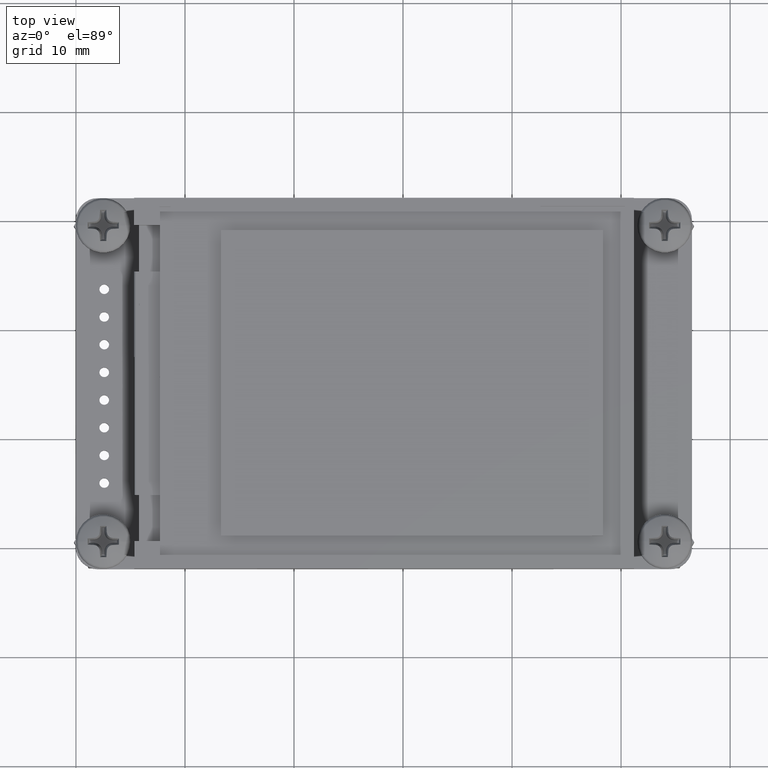
[diagram: clean part render]
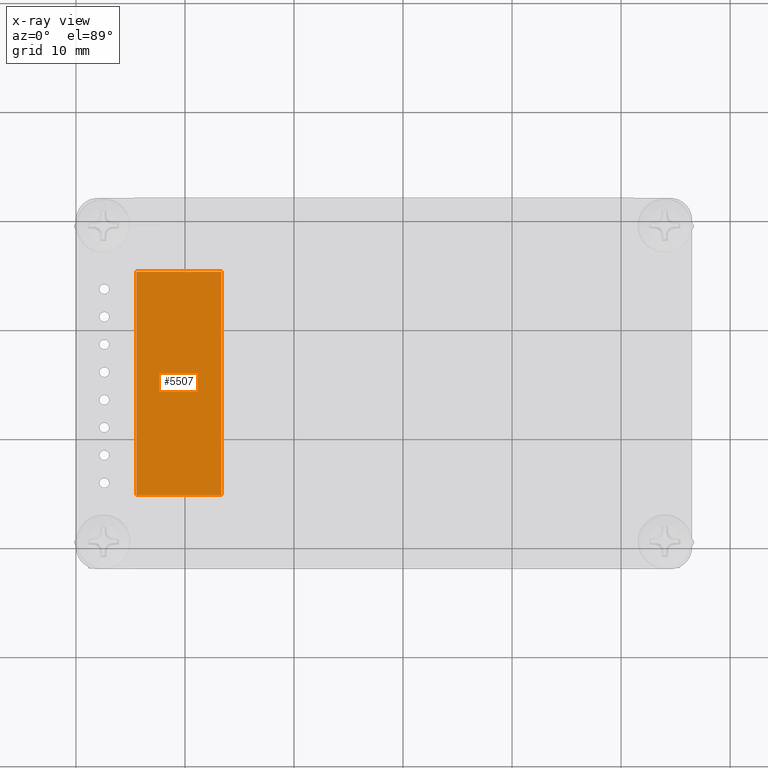
[diagram: x-ray — body ghosted, one internal face saturated and labeled with its STEP entity id]
A machine part, top view, then the same camera in x-ray: the body is ghosted and one INTERNAL B-rep face — a face not visible from any outside direction — is saturated and labeled: STEP entity #5507.
In plain terms, the highlighted planar face has unit normal (0, 0, -1).
Its self-contained STEP definition (entity closure, byte-faithful):
#4458=DIRECTION('',(0.E0,1.E0,0.E0));
#4459=VECTOR('',#4458,7.804504142891E0);
#4460=CARTESIAN_POINT('',(-1.025E1,-2.528450414289E1,-5.5E-1));
#4461=LINE('',#4460,#4459);
#4614=DIRECTION('',(1.E0,0.E0,0.E0));
#4615=VECTOR('',#4614,2.05E1);
#4616=CARTESIAN_POINT('',(-1.025E1,-1.748E1,-5.5E-1));
#4617=LINE('',#4616,#4615);
#4621=DIRECTION('',(1.E0,0.E0,0.E0));
#4622=VECTOR('',#4621,2.05E1);
#4623=CARTESIAN_POINT('',(-1.025E1,-2.528450414289E1,-5.5E-1));
#4624=LINE('',#4623,#4622);
#4693=DIRECTION('',(0.E0,1.E0,0.E0));
#4694=VECTOR('',#4693,7.804504142891E0);
#4695=CARTESIAN_POINT('',(1.025E1,-2.528450414289E1,-5.5E-1));
#4696=LINE('',#4695,#4694);
#4868=CARTESIAN_POINT('',(-1.025E1,-2.528450414289E1,-5.5E-1));
#4869=VERTEX_POINT('',#4868);
#4870=CARTESIAN_POINT('',(-1.025E1,-1.748E1,-5.5E-1));
#4871=VERTEX_POINT('',#4870);
#4888=CARTESIAN_POINT('',(1.025E1,-2.528450414289E1,-5.5E-1));
#4889=VERTEX_POINT('',#4888);
#4890=CARTESIAN_POINT('',(1.025E1,-1.748E1,-5.5E-1));
#4891=VERTEX_POINT('',#4890);
#5494=CARTESIAN_POINT('',(-1.025E1,-2.528450414289E1,-5.5E-1));
#5495=DIRECTION('',(0.E0,0.E0,-1.E0));
#5496=DIRECTION('',(0.E0,1.E0,0.E0));
#5497=AXIS2_PLACEMENT_3D('',#5494,#5495,#5496);
#5498=PLANE('',#5497);
#5499=ORIENTED_EDGE('',*,*,#5265,.F.);
#5501=ORIENTED_EDGE('',*,*,#5500,.T.);
#5503=ORIENTED_EDGE('',*,*,#5502,.T.);
#5504=ORIENTED_EDGE('',*,*,#5486,.F.);
#5505=EDGE_LOOP('',(#5499,#5501,#5503,#5504));
#5506=FACE_OUTER_BOUND('',#5505,.F.);
#5507=ADVANCED_FACE('',(#5506),#5498,.T.);
#5265=EDGE_CURVE('',#4869,#4871,#4461,.T.);
#5486=EDGE_CURVE('',#4871,#4891,#4617,.T.);
#5500=EDGE_CURVE('',#4869,#4889,#4624,.T.);
#5502=EDGE_CURVE('',#4889,#4891,#4696,.T.);